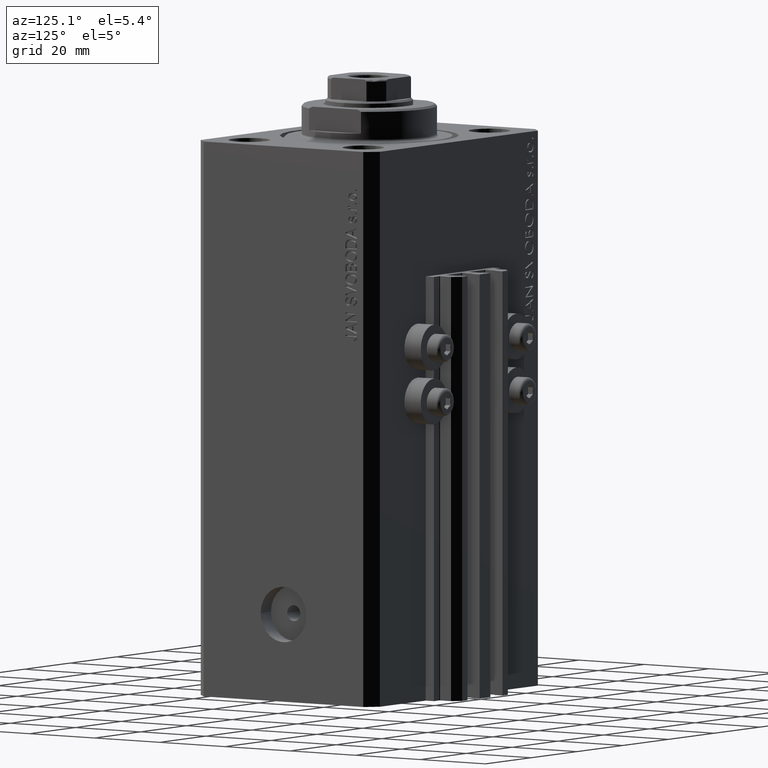
[diagram: clean part render]
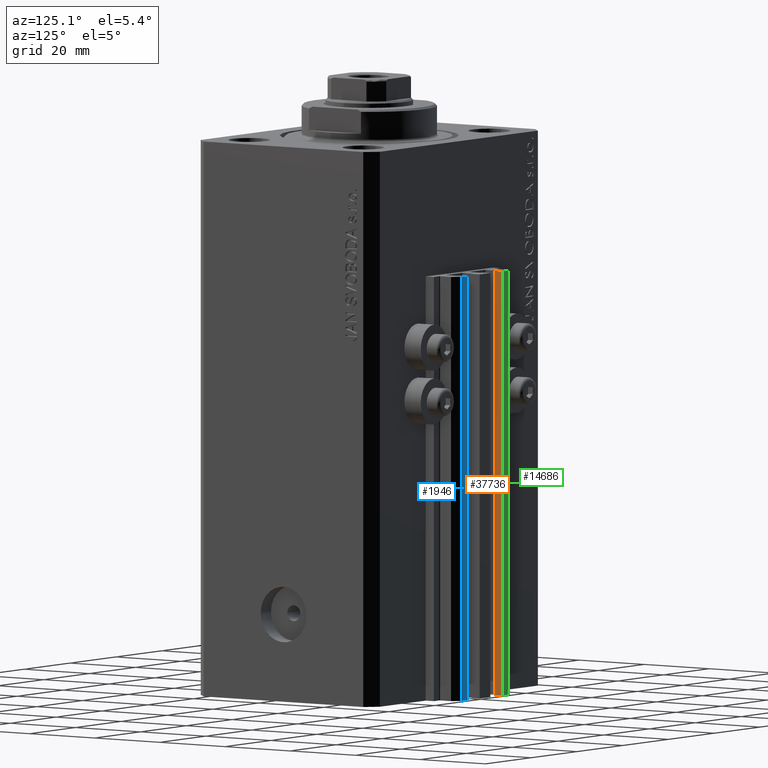
[diagram: same view with three faces highlighted in distinct colors, each labeled with its STEP entity id]
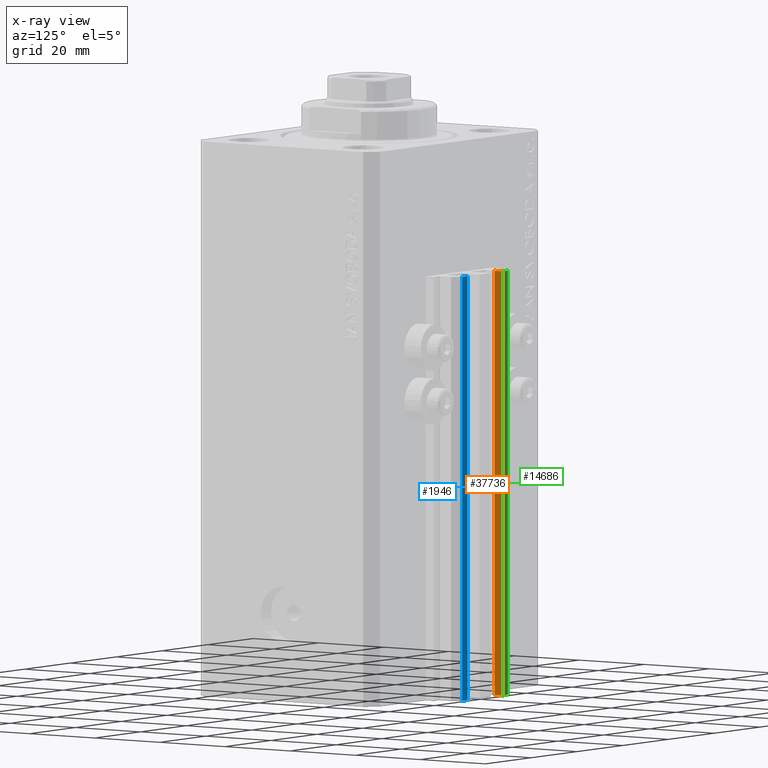
[diagram: x-ray of the same camera — body ghosted, the three highlighted faces saturated]
A machine part, auxiliary view with three faces highlighted in distinct colors.
The next image is the same camera in x-ray (body ghosted, the three faces saturated) — at least one of them is partly hidden behind the body in this view.
Their STEP definitions:

[orange] entity #37736 — the highlighted planar face has unit normal (1, 0, 0).
#1930 = CARTESIAN_POINT ( 'NONE',  ( -7.650000000000000355, 33.09999999999999432, -33.00000000000000000 ) ) ;
#5222 = VECTOR ( 'NONE', #38166, 1000.000000000000000 ) ;
#5959 = EDGE_LOOP ( 'NONE', ( #39447, #29335, #25164, #28525 ) ) ;
#7457 = LINE ( 'NONE', #11039, #21111 ) ;
#8915 = VERTEX_POINT ( 'NONE', #17699 ) ;
#11039 = CARTESIAN_POINT ( 'NONE',  ( -7.650000000000000355, 35.50000000000000000, -140.0000000000000000 ) ) ;
#11405 = EDGE_CURVE ( 'NONE', #8915, #15031, #44772, .T. ) ;
#11743 = DIRECTION ( 'NONE',  ( 0.000000000000000000, 0.000000000000000000, -1.000000000000000000 ) ) ;
#12619 = CARTESIAN_POINT ( 'NONE',  ( -7.650000000000000355, 35.50000000000000000, -140.0000000000000000 ) ) ;
#15031 = VERTEX_POINT ( 'NONE', #41548 ) ;
#17699 = CARTESIAN_POINT ( 'NONE',  ( -7.650000000000000355, 33.09999999999999432, -33.00000000000000000 ) ) ;
#18928 = DIRECTION ( 'NONE',  ( 0.000000000000000000, 0.000000000000000000, 1.000000000000000000 ) ) ;
#19494 = EDGE_CURVE ( 'NONE', #33540, #15031, #7457, .T. ) ;
#19616 = CARTESIAN_POINT ( 'NONE',  ( -7.650000000000000355, 33.09999999999999432, -140.0000000000000000 ) ) ;
#20086 = LINE ( 'NONE', #19616, #40606 ) ;
#21111 = VECTOR ( 'NONE', #18928, 1000.000000000000000 ) ;
#23341 = CARTESIAN_POINT ( 'NONE',  ( -7.650000000000000355, 33.09999999999999432, -140.0000000000000000 ) ) ;
#25164 = ORIENTED_EDGE ( 'NONE', *, *, #42821, .T. ) ;
#26326 = PLANE ( 'NONE',  #26813 ) ;
#26562 = CARTESIAN_POINT ( 'NONE',  ( -7.650000000000000355, 33.09999999999999432, -140.0000000000000000 ) ) ;
#26813 = AXIS2_PLACEMENT_3D ( 'NONE', #26562, #41147, #11743 ) ;
#26946 = EDGE_CURVE ( 'NONE', #39989, #8915, #45371, .T. ) ;
#28525 = ORIENTED_EDGE ( 'NONE', *, *, #19494, .T. ) ;
#29098 = CARTESIAN_POINT ( 'NONE',  ( -7.650000000000000355, 33.09999999999999432, -140.0000000000000000 ) ) ;
#29335 = ORIENTED_EDGE ( 'NONE', *, *, #26946, .F. ) ;
#29585 = VECTOR ( 'NONE', #45249, 1000.000000000000000 ) ;
#30613 = DIRECTION ( 'NONE',  ( 0.000000000000000000, 1.000000000000000000, 0.000000000000000000 ) ) ;
#33540 = VERTEX_POINT ( 'NONE', #12619 ) ;
#37736 = ADVANCED_FACE ( 'NONE', ( #44758 ), #26326, .T. ) ;
#38166 = DIRECTION ( 'NONE',  ( 0.000000000000000000, 0.000000000000000000, 1.000000000000000000 ) ) ;
#39447 = ORIENTED_EDGE ( 'NONE', *, *, #11405, .F. ) ;
#39989 = VERTEX_POINT ( 'NONE', #29098 ) ;
#40606 = VECTOR ( 'NONE', #30613, 1000.000000000000000 ) ;
#41147 = DIRECTION ( 'NONE',  ( 1.000000000000000000, 0.000000000000000000, 0.000000000000000000 ) ) ;
#41548 = CARTESIAN_POINT ( 'NONE',  ( -7.650000000000000355, 35.50000000000000000, -33.00000000000000000 ) ) ;
#42821 = EDGE_CURVE ( 'NONE', #39989, #33540, #20086, .T. ) ;
#44758 = FACE_OUTER_BOUND ( 'NONE', #5959, .T. ) ;
#44772 = LINE ( 'NONE', #1930, #29585 ) ;
#45249 = DIRECTION ( 'NONE',  ( 0.000000000000000000, 1.000000000000000000, 0.000000000000000000 ) ) ;
#45371 = LINE ( 'NONE', #23341, #5222 ) ;

[blue] entity #1946 — the highlighted planar face has unit normal (0, 1, 0).
#1624 = DIRECTION ( 'NONE',  ( 0.000000000000000000, 0.000000000000000000, 1.000000000000000000 ) ) ;
#1946 = ADVANCED_FACE ( 'NONE', ( #2653 ), #47137, .T. ) ;
#2653 = FACE_OUTER_BOUND ( 'NONE', #38589, .T. ) ;
#2867 = CARTESIAN_POINT ( 'NONE',  ( 7.649999999999998579, 35.50000000000001421, -33.00000000000000000 ) ) ;
#3464 = VERTEX_POINT ( 'NONE', #16933 ) ;
#3719 = LINE ( 'NONE', #25453, #28130 ) ;
#3958 = DIRECTION ( 'NONE',  ( 0.000000000000000000, 0.000000000000000000, 1.000000000000000000 ) ) ;
#4257 = CARTESIAN_POINT ( 'NONE',  ( 9.999999999999998224, 35.50000000000001421, -33.00000000000000000 ) ) ;
#4258 = LINE ( 'NONE', #41532, #46602 ) ;
#8773 = DIRECTION ( 'NONE',  ( -1.000000000000000000, 0.000000000000000000, 0.000000000000000000 ) ) ;
#8809 = CARTESIAN_POINT ( 'NONE',  ( 9.999999999999998224, 35.50000000000001421, -140.0000000000000000 ) ) ;
#15868 = VECTOR ( 'NONE', #1624, 1000.000000000000000 ) ;
#16933 = CARTESIAN_POINT ( 'NONE',  ( 7.649999999999998579, 35.50000000000001421, -140.0000000000000000 ) ) ;
#17937 = CARTESIAN_POINT ( 'NONE',  ( 9.999999999999998224, 35.50000000000001421, -140.0000000000000000 ) ) ;
#19629 = VERTEX_POINT ( 'NONE', #2867 ) ;
#23183 = VERTEX_POINT ( 'NONE', #4257 ) ;
#25206 = EDGE_CURVE ( 'NONE', #26441, #23183, #36606, .T. ) ;
#25339 = DIRECTION ( 'NONE',  ( 0.000000000000000000, 0.000000000000000000, 1.000000000000000000 ) ) ;
#25453 = CARTESIAN_POINT ( 'NONE',  ( 7.649999999999998579, 35.50000000000001421, -140.0000000000000000 ) ) ;
#26441 = VERTEX_POINT ( 'NONE', #36074 ) ;
#26514 = LINE ( 'NONE', #8809, #37524 ) ;
#27046 = EDGE_CURVE ( 'NONE', #3464, #19629, #3719, .T. ) ;
#28130 = VECTOR ( 'NONE', #3958, 1000.000000000000000 ) ;
#28579 = ORIENTED_EDGE ( 'NONE', *, *, #31257, .F. ) ;
#31257 = EDGE_CURVE ( 'NONE', #23183, #19629, #4258, .T. ) ;
#33434 = AXIS2_PLACEMENT_3D ( 'NONE', #17937, #35154, #25339 ) ;
#35154 = DIRECTION ( 'NONE',  ( 0.000000000000000000, 1.000000000000000000, -0.000000000000000000 ) ) ;
#35506 = EDGE_CURVE ( 'NONE', #26441, #3464, #26514, .T. ) ;
#36074 = CARTESIAN_POINT ( 'NONE',  ( 9.999999999999998224, 35.50000000000001421, -140.0000000000000000 ) ) ;
#36606 = LINE ( 'NONE', #37715, #15868 ) ;
#36812 = ORIENTED_EDGE ( 'NONE', *, *, #27046, .T. ) ;
#37524 = VECTOR ( 'NONE', #37738, 1000.000000000000000 ) ;
#37715 = CARTESIAN_POINT ( 'NONE',  ( 9.999999999999998224, 35.50000000000001421, -140.0000000000000000 ) ) ;
#37738 = DIRECTION ( 'NONE',  ( -1.000000000000000000, 0.000000000000000000, 0.000000000000000000 ) ) ;
#38437 = ORIENTED_EDGE ( 'NONE', *, *, #25206, .F. ) ;
#38589 = EDGE_LOOP ( 'NONE', ( #28579, #38437, #41101, #36812 ) ) ;
#41101 = ORIENTED_EDGE ( 'NONE', *, *, #35506, .T. ) ;
#41532 = CARTESIAN_POINT ( 'NONE',  ( 9.999999999999998224, 35.50000000000001421, -33.00000000000000000 ) ) ;
#46602 = VECTOR ( 'NONE', #8773, 1000.000000000000000 ) ;
#47137 = PLANE ( 'NONE',  #33434 ) ;

[green] entity #14686 — the highlighted planar face has unit normal (0, 1, 0).
#2249 = EDGE_LOOP ( 'NONE', ( #29478, #25106, #33860, #46605 ) ) ;
#7457 = LINE ( 'NONE', #11039, #21111 ) ;
#9966 = DIRECTION ( 'NONE',  ( -1.000000000000000000, 0.000000000000000000, 0.000000000000000000 ) ) ;
#10722 = CARTESIAN_POINT ( 'NONE',  ( -10.00000000000000000, 35.50000000000000000, -33.00000000000000000 ) ) ;
#11039 = CARTESIAN_POINT ( 'NONE',  ( -7.650000000000000355, 35.50000000000000000, -140.0000000000000000 ) ) ;
#12619 = CARTESIAN_POINT ( 'NONE',  ( -7.650000000000000355, 35.50000000000000000, -140.0000000000000000 ) ) ;
#14686 = ADVANCED_FACE ( 'NONE', ( #47164 ), #36847, .T. ) ;
#15031 = VERTEX_POINT ( 'NONE', #41548 ) ;
#18928 = DIRECTION ( 'NONE',  ( 0.000000000000000000, 0.000000000000000000, 1.000000000000000000 ) ) ;
#19494 = EDGE_CURVE ( 'NONE', #33540, #15031, #7457, .T. ) ;
#19512 = CARTESIAN_POINT ( 'NONE',  ( -10.00000000000000000, 35.50000000000000000, -140.0000000000000000 ) ) ;
#20760 = VECTOR ( 'NONE', #43921, 1000.000000000000000 ) ;
#21111 = VECTOR ( 'NONE', #18928, 1000.000000000000000 ) ;
#24783 = LINE ( 'NONE', #25256, #43796 ) ;
#25106 = ORIENTED_EDGE ( 'NONE', *, *, #19494, .F. ) ;
#25256 = CARTESIAN_POINT ( 'NONE',  ( -7.650000000000000355, 35.50000000000000000, -140.0000000000000000 ) ) ;
#27374 = CARTESIAN_POINT ( 'NONE',  ( -10.00000000000000000, 35.50000000000000000, -140.0000000000000000 ) ) ;
#28953 = DIRECTION ( 'NONE',  ( 0.000000000000000000, 1.000000000000000000, -0.000000000000000000 ) ) ;
#29478 = ORIENTED_EDGE ( 'NONE', *, *, #44015, .F. ) ;
#29564 = LINE ( 'NONE', #19512, #39046 ) ;
#33150 = DIRECTION ( 'NONE',  ( 0.000000000000000000, 0.000000000000000000, 1.000000000000000000 ) ) ;
#33540 = VERTEX_POINT ( 'NONE', #12619 ) ;
#33860 = ORIENTED_EDGE ( 'NONE', *, *, #45698, .T. ) ;
#34735 = AXIS2_PLACEMENT_3D ( 'NONE', #39952, #28953, #46926 ) ;
#36847 = PLANE ( 'NONE',  #34735 ) ;
#39046 = VECTOR ( 'NONE', #33150, 1000.000000000000000 ) ;
#39079 = EDGE_CURVE ( 'NONE', #44177, #43607, #29564, .T. ) ;
#39952 = CARTESIAN_POINT ( 'NONE',  ( -7.650000000000000355, 35.50000000000000000, -140.0000000000000000 ) ) ;
#41548 = CARTESIAN_POINT ( 'NONE',  ( -7.650000000000000355, 35.50000000000000000, -33.00000000000000000 ) ) ;
#43441 = LINE ( 'NONE', #44397, #20760 ) ;
#43607 = VERTEX_POINT ( 'NONE', #10722 ) ;
#43796 = VECTOR ( 'NONE', #9966, 1000.000000000000000 ) ;
#43921 = DIRECTION ( 'NONE',  ( -1.000000000000000000, 0.000000000000000000, 0.000000000000000000 ) ) ;
#44015 = EDGE_CURVE ( 'NONE', #15031, #43607, #43441, .T. ) ;
#44177 = VERTEX_POINT ( 'NONE', #27374 ) ;
#44397 = CARTESIAN_POINT ( 'NONE',  ( -7.650000000000000355, 35.50000000000000000, -33.00000000000000000 ) ) ;
#45698 = EDGE_CURVE ( 'NONE', #33540, #44177, #24783, .T. ) ;
#46605 = ORIENTED_EDGE ( 'NONE', *, *, #39079, .T. ) ;
#46926 = DIRECTION ( 'NONE',  ( 0.000000000000000000, 0.000000000000000000, 1.000000000000000000 ) ) ;
#47164 = FACE_OUTER_BOUND ( 'NONE', #2249, .T. ) ;